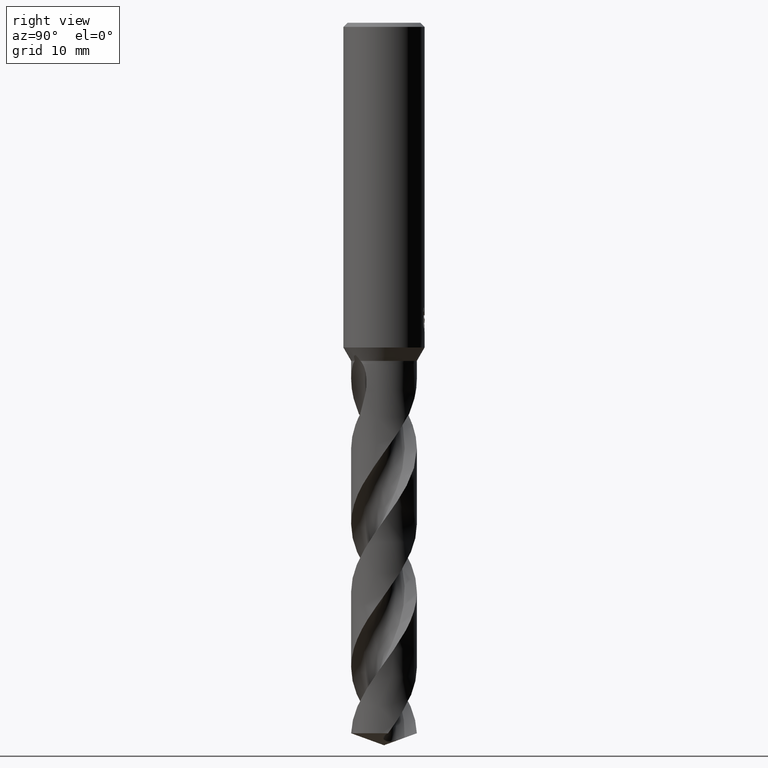
[diagram: clean part render]
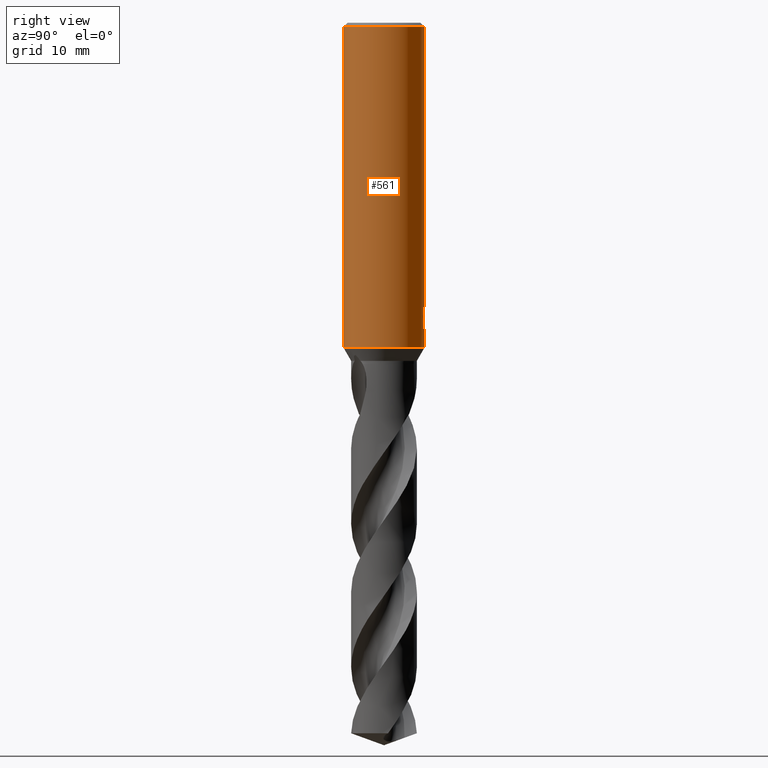
[diagram: same view with one face highlighted and labeled with its STEP entity id]
A machine part, right view. The second image highlights one B-rep face of the part: STEP entity #561.
In plain terms, the highlighted cylindrical surface (partial cylindrical patch) has radius 5 mm, axis along (-0, -0, 1).
Its self-contained STEP definition (entity closure, byte-faithful):
#337=VERTEX_POINT('',#859);
#361=VERTEX_POINT('',#885);
#369=EDGE_CURVE('',#643,#681,#894,.T.);
#393=EDGE_CURVE('',#483,#773,#919,.T.);
#407=EDGE_CURVE('',#609,#483,#935,.T.);
#409=EDGE_CURVE('',#643,#629,#937,.T.);
#415=EDGE_CURVE('',#361,#735,#944,.T.);
#431=VERTEX_POINT('',#961);
#435=VERTEX_POINT('',#965);
#483=VERTEX_POINT('',#1017);
#503=EDGE_CURVE('',#773,#435,#1037,.T.);
#531=EDGE_CURVE('',#735,#609,#1068,.T.);
#533=EDGE_CURVE('',#431,#629,#1070,.T.);
#561=ADVANCED_FACE('',(#1101),#1102,.T.);
#579=EDGE_CURVE('',#337,#681,#1121,.T.);
#609=VERTEX_POINT('',#1153);
#613=VERTEX_POINT('',#1157);
#629=VERTEX_POINT('',#1175);
#643=VERTEX_POINT('',#1190);
#675=EDGE_CURVE('',#613,#337,#1229,.T.);
#679=EDGE_CURVE('',#361,#613,#1234,.T.);
#681=VERTEX_POINT('',#1236);
#735=VERTEX_POINT('',#1295);
#747=EDGE_CURVE('',#435,#431,#1308,.T.);
#773=VERTEX_POINT('',#1334);
#859=CARTESIAN_POINT('',(6.12303176911189E-016,-5.0,-40.0));
#885=CARTESIAN_POINT('',(-4.2179236924284E-015,5.0,-38.0310253601033));
#894=CIRCLE('',#2808,5.0);
#919=B_SPLINE_CURVE_WITH_KNOTS('',3,(#2854,#2855,#2856,#2857,#2858,#2859,#2860,#2861,#2862,#2863),.UNSPECIFIED.,.F.,.F.,(4,2,2,2,4),(8.03978938391207,8.34870158568316,8.65761378745426,8.96684541549285,9.27607704353144),.UNSPECIFIED.);
#935=LINE('',#2909,#2910);
#937=LINE('',#2913,#2914);
#944=B_SPLINE_CURVE_WITH_KNOTS('',3,(#2940,#2941,#2942,#2943,#2944,#2945,#2946,#2947,#2948,#2949,#2950,#2951,#2952,#2953,#2954,#2955),.UNSPECIFIED.,.F.,.F.,(4,2,2,2,2,2,2,4),(5.87517564836087,6.18447732711524,6.49384941721167,6.80322150730809,7.11259359740452,7.42196568750094,7.73087791711931,8.03979014673767),.UNSPECIFIED.);
#961=CARTESIAN_POINT('',(0.799431726384364,4.93567714856332,-35.000000276873));
#965=CARTESIAN_POINT('',(1.33721006514658,4.81786978255647,-35.5150484364821));
#1017=CARTESIAN_POINT('',(0.873560781758956,4.92309776061503,-37.7587351791531));
#1037=LINE('',#3335,#3336);
#1068=ELLIPSE('',#3493,15.2399728668489,5.0);
#1070=B_SPLINE_CURVE_WITH_KNOTS('',3,(#3496,#3497,#3498,#3499,#3500,#3501,#3502,#3503,#3504,#3505,#3506,#3507,#3508,#3509,#3510,#3511,#3512,#3513,#3514,#3515,#3516,#3517,#3518,#3519,#3520,#3521,#3522),.UNSPECIFIED.,.F.,.F.,(4,2,3,2,2,2,2,2,2,2,2,2,4),(-0.542486104801738,-0.271243052400869,0.0,0.271243052400869,0.542486104801738,0.814298814936944,1.08611152507215,1.35696845964793,1.62782539422372,1.89896433698445,2.17010327974519,2.44124222250593,2.71238116526667),.UNSPECIFIED.);
#1101=FACE_OUTER_BOUND('',#3571,.T.);
#1102=CYLINDRICAL_SURFACE('',#3572,5.0);
#1121=LINE('',#3625,#3626);
#1153=CARTESIAN_POINT('',(0.873560781758957,4.92309776061503,-36.3198931596091));
#1157=CARTESIAN_POINT('',(0.0,5.0,-40.0));
#1175=CARTESIAN_POINT('',(-9.82055749138764E-015,5.0,-36.0232688117743));
#1190=CARTESIAN_POINT('',(0.0,5.0,-0.5));
#1229=CIRCLE('',#4237,5.0);
#1234=LINE('',#4891,#4892);
#1236=CARTESIAN_POINT('',(6.12303176911189E-016,-5.0,-0.5));
#1295=CARTESIAN_POINT('',(0.29010312703583,4.99157692274536,-37.9998328990228));
#1308=B_SPLINE_CURVE_WITH_KNOTS('',3,(#5208,#5209,#5210,#5211,#5212,#5213,#5214,#5215,#5216,#5217),.UNSPECIFIED.,.F.,.F.,(4,2,2,2,4),(0.618463277568802,0.927694916353203,1.2369265551376,1.54583876733634,1.85475097953508),.UNSPECIFIED.);
#1334=CARTESIAN_POINT('',(1.33721006514658,4.81786978255646,-37.2901657003257));
#2808=AXIS2_PLACEMENT_3D('',#5507,#5508,#5509);
#2854=CARTESIAN_POINT('',(0.596736548110758,4.96426283471664,-37.9065353597382));
#2855=CARTESIAN_POINT('',(0.696940415976904,4.95221768077604,-37.8648861955132));
#2856=CARTESIAN_POINT('',(0.792829678386026,4.93756175251447,-37.8131364650754));
#2857=CARTESIAN_POINT('',(0.969955792779445,4.90584148938556,-37.6938507691423));
#2858=CARTESIAN_POINT('',(1.05119214028325,4.88880718483703,-37.6263060709848));
#2859=CARTESIAN_POINT('',(1.1950179267128,4.85565484960812,-37.4825325659411));
#2860=CARTESIAN_POINT('',(1.26262396516471,4.83834796167932,-37.4012621113954));
#2861=CARTESIAN_POINT('',(1.38199541925443,4.80561327380657,-37.2240986142183));
#2862=CARTESIAN_POINT('',(1.4337709692914,4.79021953794996,-37.1282061077952));
#2863=CARTESIAN_POINT('',(1.47544633659597,4.77734843902196,-37.0279929829259));
#2909=CARTESIAN_POINT('',(0.873560781758957,4.92309776061503,-37.0393141693811));
#2910=VECTOR('',#5551,1.0);
#2913=CARTESIAN_POINT('',(-6.12303176911189E-016,5.0,-20.25));
#2914=VECTOR('',#5552,1.0);
#2940=CARTESIAN_POINT('',(-1.37919625933141,4.80601890115366,-37.3124404256203));
#2941=CARTESIAN_POINT('',(-1.31957521374487,4.82312851403775,-37.4009601597598));
#2942=CARTESIAN_POINT('',(-1.25205684175205,4.84126211135571,-37.4821654513649));
#2943=CARTESIAN_POINT('',(-1.10836495207318,4.87616599259845,-37.6259115514073));
#2944=CARTESIAN_POINT('',(-1.0271524301646,4.89418890879516,-37.693486795378));
#2945=CARTESIAN_POINT('',(-0.850055905397219,4.9280353232664,-37.8128453591325));
#2946=CARTESIAN_POINT('',(-0.754172188044363,4.94382885968066,-37.8646375967458));
#2947=CARTESIAN_POINT('',(-0.553725999780852,4.97027232652294,-37.9480281920328));
#2948=CARTESIAN_POINT('',(-0.448990720596507,4.98092390938096,-37.9796924022892));
#2949=CARTESIAN_POINT('',(-0.237871423561604,4.99545922254228,-38.0213202804398));
#2950=CARTESIAN_POINT('',(-0.13148454027928,4.99933459384723,-38.0312723335086));
#2951=CARTESIAN_POINT('',(0.0746069172274575,5.00050365281921,-38.0312723335086));
#2952=CARTESIAN_POINT('',(0.180879006433096,4.99784409598263,-38.021349312763));
#2953=CARTESIAN_POINT('',(0.391840688075154,4.98574204084828,-37.9798000876985));
#2954=CARTESIAN_POINT('',(0.496532945230264,4.97630796240248,-37.9481849619546));
#2955=CARTESIAN_POINT('',(0.596736821506944,4.96426280185264,-37.9065357940623));
#3335=CARTESIAN_POINT('',(1.33721006514658,4.81786978255646,-36.4026070684039));
#3336=VECTOR('',#5624,1.0);
#3493=AXIS2_PLACEMENT_3D('',#5667,#5668,#5669);
#3496=CARTESIAN_POINT('',(0.665122770091172,4.95556371169883,-34.8135963457478));
#3497=CARTESIAN_POINT('',(0.728735196954596,4.94702581852882,-34.8772777273236));
#3498=CARTESIAN_POINT('',(0.783964166103465,4.93829748078097,-34.9579436035979));
#3499=CARTESIAN_POINT('',(0.857301933462898,4.92609533329604,-35.1349114173306));
#3500=CARTESIAN_POINT('',(0.875400981188567,4.92277087849253,-35.2312276617865));
#3501=CARTESIAN_POINT('',(0.875400981188567,4.92277087849253,-35.3216420125868));
#3502=CARTESIAN_POINT('',(0.875400981188567,4.92277087849253,-35.4120563633871));
#3503=CARTESIAN_POINT('',(0.857301933462898,4.92609533329604,-35.5083726078429));
#3504=CARTESIAN_POINT('',(0.783964166103465,4.93829748078097,-35.6853404215757));
#3505=CARTESIAN_POINT('',(0.728735196954596,4.94702581852882,-35.76600629785));
#3506=CARTESIAN_POINT('',(0.601376746032753,4.96411953593411,-35.8935028030135));
#3507=CARTESIAN_POINT('',(0.520641197115554,4.97361399538109,-35.9488552844728));
#3508=CARTESIAN_POINT('',(0.343503822480858,4.98897870858442,-36.0223670116056));
#3509=CARTESIAN_POINT('',(0.247086219827461,4.9947129574863,-36.0405166027747));
#3510=CARTESIAN_POINT('',(0.0662849978754683,5.00037576555244,-36.0405166027747));
#3511=CARTESIAN_POINT('',(-0.0299853354073752,5.00069421157822,-36.022481035651));
#3512=CARTESIAN_POINT('',(-0.207042529230845,4.99649628332508,-35.9491606175219));
#3513=CARTESIAN_POINT('',(-0.287834149954029,4.99211780487336,-35.8938794313977));
#3514=CARTESIAN_POINT('',(-0.415469449620835,4.98311973872716,-35.7663325263823));
#3515=CARTESIAN_POINT('',(-0.470822894462521,4.97792007270922,-35.6855206130663));
#3516=CARTESIAN_POINT('',(-0.544264412763406,4.97042641093864,-35.5083690868499));
#3517=CARTESIAN_POINT('',(-0.562348199187247,4.96827580785033,-35.4120216601737));
#3518=CARTESIAN_POINT('',(-0.562348199187247,4.96827580785033,-35.2312623649999));
#3519=CARTESIAN_POINT('',(-0.544264412763406,4.97042641093864,-35.1349149383237));
#3520=CARTESIAN_POINT('',(-0.470822894462521,4.97792007270922,-34.9577634121072));
#3521=CARTESIAN_POINT('',(-0.415469449620836,4.98311973872716,-34.8769514987913));
#3522=CARTESIAN_POINT('',(-0.351618594554054,4.98762111271133,-34.8131448640467));
#3571=EDGE_LOOP('',(#5706,#5707,#5708,#5709,#5710,#5711,#5712,#5713,#5714,#5715,#5716,#5717));
#3572=AXIS2_PLACEMENT_3D('',#5718,#5719,#5720);
#3625=CARTESIAN_POINT('',(6.12303176911189E-016,-5.0,-20.25));
#3626=VECTOR('',#5752,1.0);
#4237=AXIS2_PLACEMENT_3D('',#5892,#5893,#5894);
#4891=CARTESIAN_POINT('',(-6.12303176911189E-016,5.0,-20.25));
#4892=VECTOR('',#5903,1.0);
#5208=CARTESIAN_POINT('',(1.47544634459503,4.77734843655151,-35.7772211678144));
#5209=CARTESIAN_POINT('',(1.43377097583397,4.79021953600577,-35.6770080394811));
#5210=CARTESIAN_POINT('',(1.38199542398865,4.8056132724731,-35.5811155297459));
#5211=CARTESIAN_POINT('',(1.26262396572432,4.83834796156109,-35.4039520264488));
#5212=CARTESIAN_POINT('',(1.19501792490561,4.8556548500921,-35.3226815690952));
#5213=CARTESIAN_POINT('',(1.05119213349515,4.88880718633437,-35.178908059153));
#5214=CARTESIAN_POINT('',(0.969955783216372,4.90584149133193,-35.1113633587199));
#5215=CARTESIAN_POINT('',(0.792829662772183,4.93756175507685,-34.9920776587655));
#5216=CARTESIAN_POINT('',(0.696940397087141,4.95221768350352,-34.9403279265819));
#5217=CARTESIAN_POINT('',(0.596736525802593,4.96426283739822,-34.8986787609541));
#5507=CARTESIAN_POINT('',(0.0,0.0,-0.5));
#5508=DIRECTION('',(0.0,0.0,-1.0));
#5509=DIRECTION('',(0.0,1.0,0.0));
#5551=DIRECTION('',(0.0,0.0,-1.0));
#5552=DIRECTION('',(0.0,0.0,-1.0));
#5624=DIRECTION('',(-0.0,-0.0,1.0));
#5667=CARTESIAN_POINT('',(0.0,0.0,-38.8351219173269));
#5668=DIRECTION('',(0.944648353914092,0.0,-0.328084573619969));
#5669=DIRECTION('',(0.328084573619969,-0.0,0.944648353914092));
#5706=ORIENTED_EDGE('',*,*,#409,.F.);
#5707=ORIENTED_EDGE('',*,*,#369,.T.);
#5708=ORIENTED_EDGE('',*,*,#579,.F.);
#5709=ORIENTED_EDGE('',*,*,#675,.F.);
#5710=ORIENTED_EDGE('',*,*,#679,.F.);
#5711=ORIENTED_EDGE('',*,*,#415,.T.);
#5712=ORIENTED_EDGE('',*,*,#531,.T.);
#5713=ORIENTED_EDGE('',*,*,#407,.T.);
#5714=ORIENTED_EDGE('',*,*,#393,.T.);
#5715=ORIENTED_EDGE('',*,*,#503,.T.);
#5716=ORIENTED_EDGE('',*,*,#747,.T.);
#5717=ORIENTED_EDGE('',*,*,#533,.T.);
#5718=CARTESIAN_POINT('',(0.0,0.0,-20.25));
#5719=DIRECTION('',(-0.0,-0.0,1.0));
#5720=DIRECTION('',(0.0,1.0,0.0));
#5752=DIRECTION('',(-0.0,-0.0,1.0));
#5892=CARTESIAN_POINT('',(0.0,0.0,-40.0));
#5893=DIRECTION('',(0.0,0.0,-1.0));
#5894=DIRECTION('',(0.0,1.0,0.0));
#5903=DIRECTION('',(0.0,0.0,-1.0));